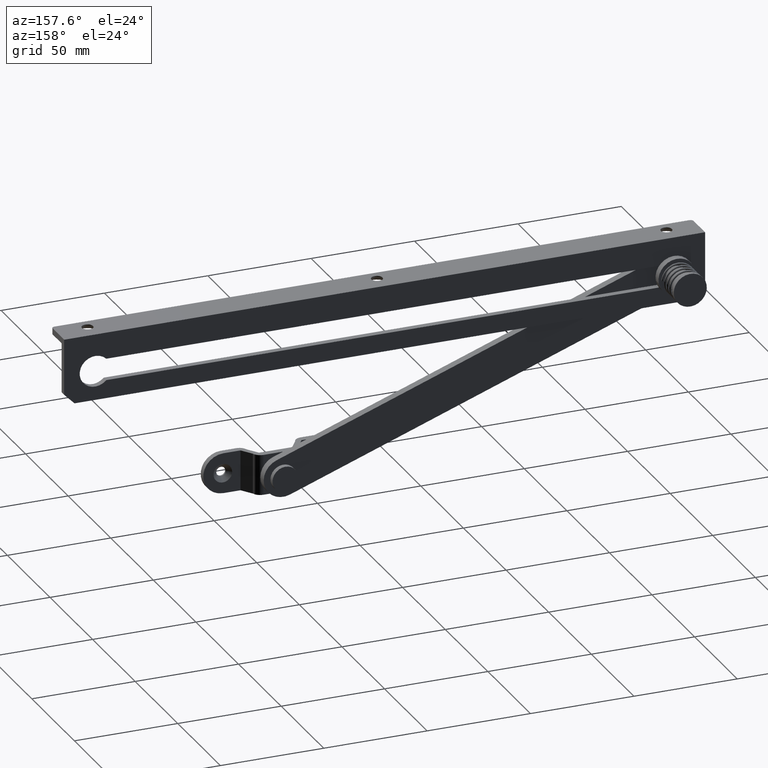
[diagram: clean part render]
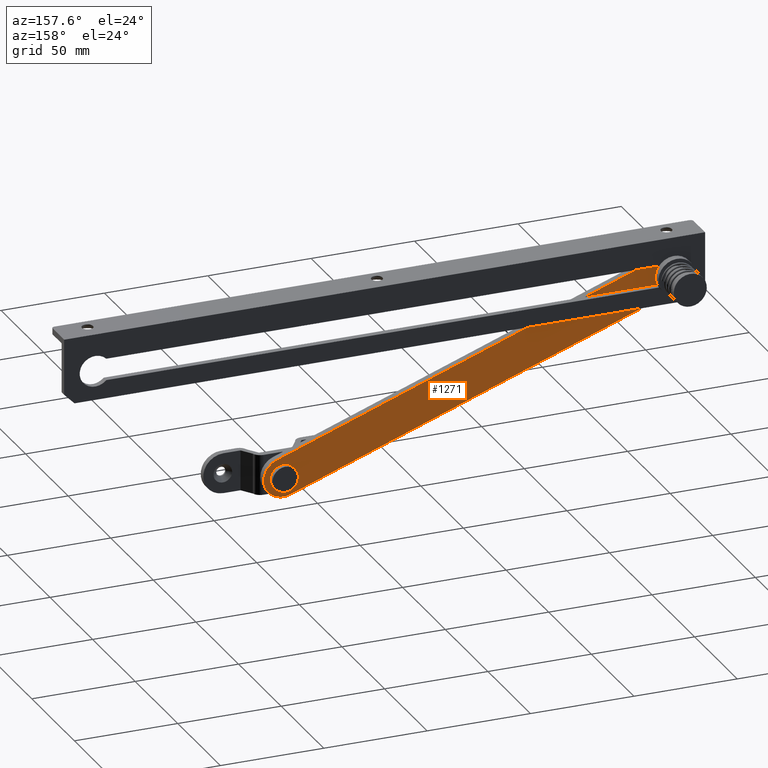
[diagram: same view with one face highlighted and labeled with its STEP entity id]
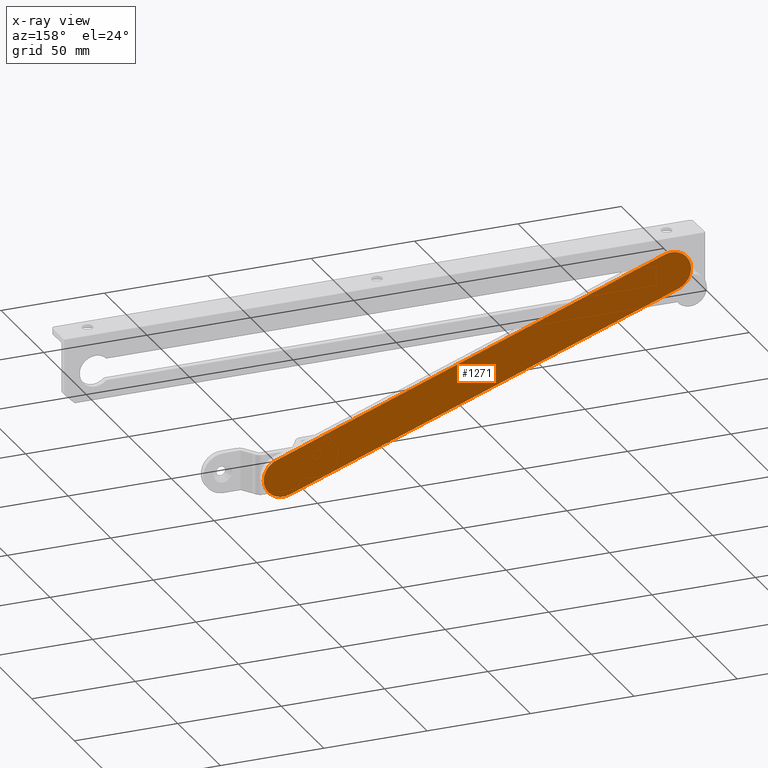
[diagram: x-ray of the same camera — body ghosted, the highlighted face saturated]
A machine part, auxiliary view. The second image highlights one B-rep face of the part: STEP entity #1271.
The next image is the same camera in x-ray: the body ghosted, the highlighted face saturated — about 0% of this face is hidden behind the body in this view.
In plain terms, the highlighted planar face has unit normal (0, -1, 0).
Its self-contained STEP definition (entity closure, byte-faithful):
#111=LINE('',#2084,#189);
#115=LINE('',#2093,#193);
#189=VECTOR('',#1691,200.);
#193=VECTOR('',#1697,200.);
#259=PLANE('',#1408);
#409=FACE_OUTER_BOUND('',#525,.T.);
#525=EDGE_LOOP('',(#1077,#1078,#1079,#1080));
#616=CIRCLE('',#1402,9.5);
#618=CIRCLE('',#1405,9.5);
#707=VERTEX_POINT('',#2082);
#708=VERTEX_POINT('',#2083);
#711=VERTEX_POINT('',#2091);
#712=VERTEX_POINT('',#2092);
#836=EDGE_CURVE('',#707,#708,#111,.T.);
#840=EDGE_CURVE('',#711,#712,#115,.T.);
#844=EDGE_CURVE('',#712,#707,#616,.T.);
#846=EDGE_CURVE('',#708,#711,#618,.T.);
#1077=ORIENTED_EDGE('',*,*,#846,.F.);
#1078=ORIENTED_EDGE('',*,*,#836,.F.);
#1079=ORIENTED_EDGE('',*,*,#844,.F.);
#1080=ORIENTED_EDGE('',*,*,#840,.F.);
#1271=ADVANCED_FACE('',(#409),#259,.F.);
#1402=AXIS2_PLACEMENT_3D('',#2100,#1703,#1704);
#1405=AXIS2_PLACEMENT_3D('',#2103,#1709,#1710);
#1408=AXIS2_PLACEMENT_3D('',#2106,#1715,#1716);
#1691=DIRECTION('',(1.,0.,-2.22044604925031E-17));
#1697=DIRECTION('',(-1.,0.,4.44089209850063E-17));
#1703=DIRECTION('center_axis',(0.,1.,0.));
#1704=DIRECTION('ref_axis',(-1.,0.,0.));
#1709=DIRECTION('center_axis',(0.,1.,0.));
#1710=DIRECTION('ref_axis',(-1.,0.,0.));
#1715=DIRECTION('center_axis',(0.,1.,0.));
#1716=DIRECTION('ref_axis',(0.,0.,1.));
#2082=CARTESIAN_POINT('',(-200.,0.,9.50000000000001));
#2083=CARTESIAN_POINT('',(0.,0.,9.5));
#2084=CARTESIAN_POINT('',(-200.,0.,9.50000000000001));
#2091=CARTESIAN_POINT('',(0.,0.,-9.5));
#2092=CARTESIAN_POINT('',(-200.,0.,-9.49999999999999));
#2093=CARTESIAN_POINT('',(0.,0.,-9.5));
#2100=CARTESIAN_POINT('Origin',(-200.,0.,6.15049266173476E-15));
#2103=CARTESIAN_POINT('Origin',(0.,0.,0.));
#2106=CARTESIAN_POINT('Origin',(-1.11598409875913E-15,0.,5.84218712776515E-16));